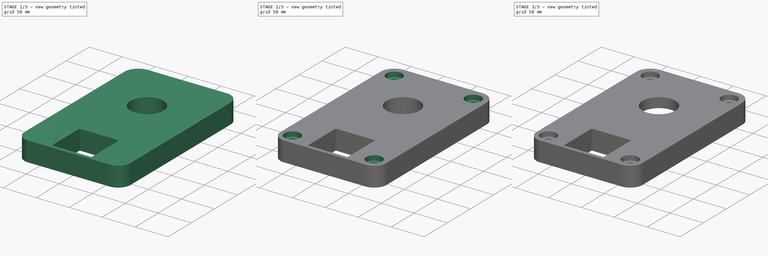
[diagram: build sequence overview — one tinted view per stage of 3, left to right]
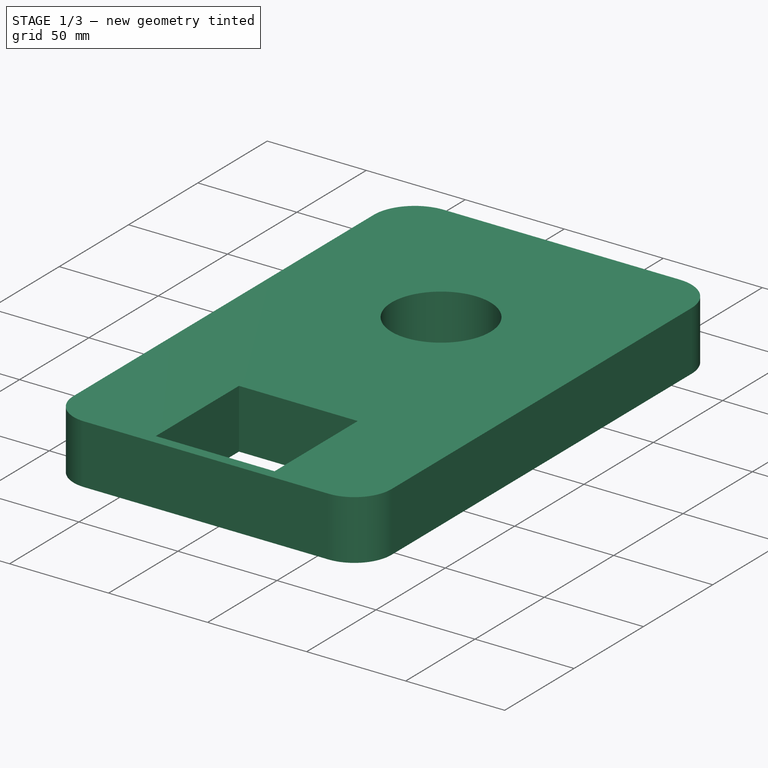
[diagram: stage 1 of 3 — iso view after this stage's code; geometry added in this stage tinted green]
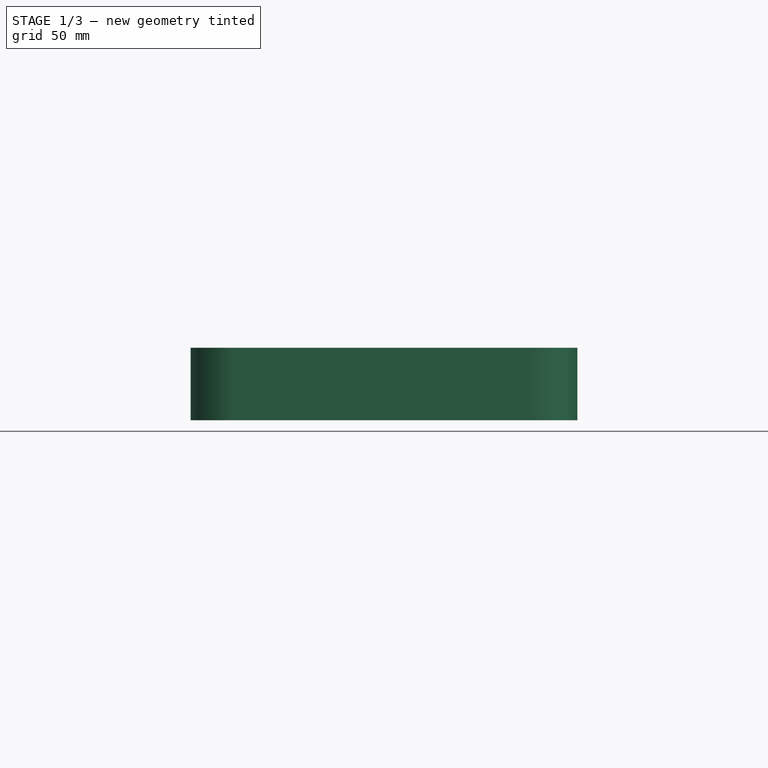
[diagram: stage 1 of 3 — front view after this stage's code; geometry added in this stage tinted green]
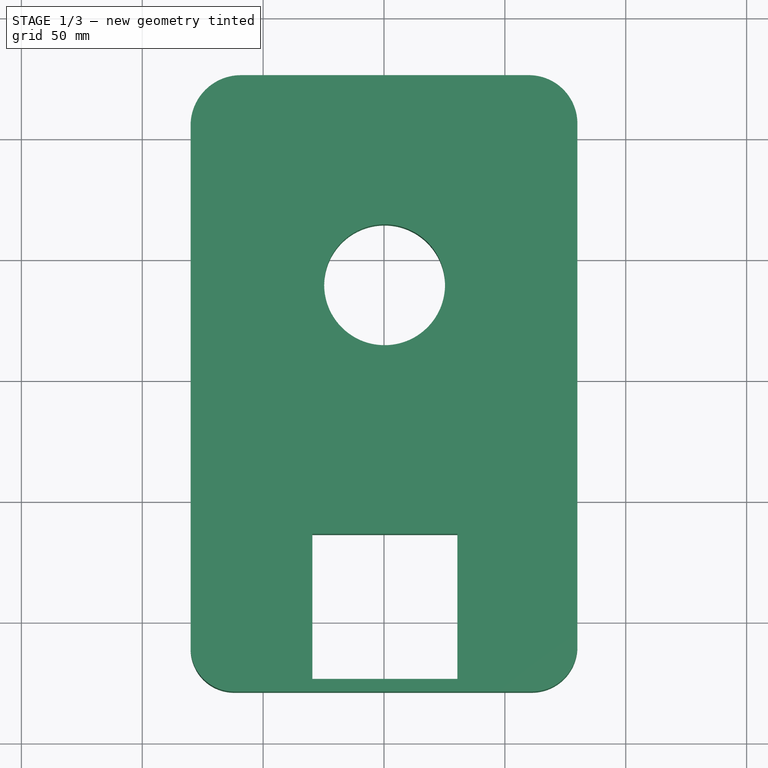
[diagram: stage 1 of 3 — top view after this stage's code; geometry added in this stage tinted green]
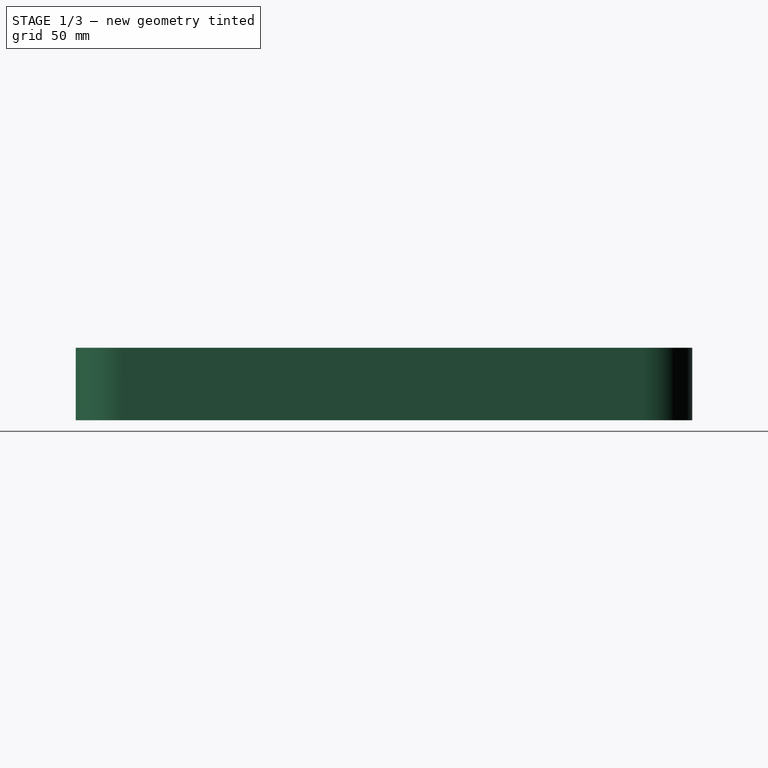
[diagram: stage 1 of 3 — right view after this stage's code; geometry added in this stage tinted green]
FCSTD DOCUMENT  (FreeCAD 0.18R16131 (Git))
Label: Momentum_Main_Plate_138X170_Base
License: All rights reserved
LicenseURL: http://en.wikipedia.org/wiki/All_rights_reserved
objects: Sketcher::SketchObject×2, PartDesign::Pad×2, PartDesign::Hole×2, PartDesign::Pocket×2, PartDesign::Body×1
note: 15 computed .brp shape members not serialized (recipe doc carries the construction recipe); baked Part::Feature solids carry a one-line shape summary decoded from their .brp

FEATURE [Sketcher::SketchObject] Sketch
  MapMode = 5
  Support = -> [XY_Plane]
  sketch-geometry (13):
    g0: Circle CenterX=0.246663 CenterY=39.4031 CenterZ=0 NormalX=0 NormalY=0 NormalZ=1 AngleXU=0 Radius=25
    g1: LineSegment StartX=-62.0087 StartY=-128.889 StartZ=0 EndX=61.1564 EndY=-128.889 EndZ=0
    g2: LineSegment StartX=80 StartY=-110.045 StartZ=0 EndX=80 EndY=106.046 EndZ=0
    g3: LineSegment StartX=59.9347 StartY=126.111 StartZ=0 EndX=-59.1847 EndY=126.111 EndZ=0
    g4: LineSegment StartX=-80 StartY=105.296 StartZ=0 EndX=-80 EndY=-110.898 EndZ=0
    g5: ArcOfCircle CenterX=-59.1847 CenterY=105.296 CenterZ=0 NormalX=0 NormalY=0 NormalZ=1 AngleXU=0 Radius=20.8153 StartAngle=1.5708 EndAngle=3.14159
    g6: ArcOfCircle CenterX=59.9347 CenterY=106.046 CenterZ=0 NormalX=0 NormalY=0 NormalZ=1 AngleXU=0 Radius=20.0653 StartAngle=0 EndAngle=1.5708
    g7: ArcOfCircle CenterX=61.1564 CenterY=-110.045 CenterZ=0 NormalX=0 NormalY=0 NormalZ=1 AngleXU=0 Radius=18.8436 StartAngle=4.71239 EndAngle=6.28319
    g8: ArcOfCircle CenterX=-62.0087 CenterY=-110.898 CenterZ=0 NormalX=0 NormalY=0 NormalZ=1 AngleXU=0 Radius=17.9913 StartAngle=3.14159 EndAngle=4.71239
    g9: LineSegment StartX=-29.6497 StartY=-63.6417 StartZ=0 EndX=30.3503 EndY=-63.6417 EndZ=0
    g10: LineSegment StartX=30.3503 StartY=-63.6417 StartZ=0 EndX=30.3503 EndY=-123.642 EndZ=0
    g11: LineSegment StartX=30.3503 StartY=-123.642 StartZ=0 EndX=-29.6497 EndY=-123.642 EndZ=0
    g12: LineSegment StartX=-29.6497 StartY=-123.642 StartZ=0 EndX=-29.6497 EndY=-63.6417 EndZ=0
  constraints (23):
    c: Radius(g0) = 25
    c: Horizontal(g1)
    c: Horizontal(g3)
    c: Vertical(g2)
    c: Vertical(g4)
    c: Tangent(g3,g5) = -1.5708
    c: Tangent(g4,g5) = -1.5708
    c: Tangent(g3,g6) = -1.5708
    c: Tangent(g2,g6) = -1.5708
    c: Tangent(g2,g7) = -1.5708
    c: Tangent(g1,g7) = -1.5708
    c: Tangent(g1,g8) = -1.5708
    c: Tangent(g4,g8) = -1.5708
    c: Coincident(g9,g10)
    c: Coincident(g10,g11)
    c: Coincident(g11,g12)
    c: Coincident(g12,g9)
    c: Horizontal(g9)
    c: Horizontal(g11)
    c: Vertical(g10)
    c: Vertical(g12)
    c: DistanceX(g9,g9) = 60
    c: DistanceY(g10,g10) = 60
FEATURE [PartDesign::Pad] Pad
  Length = 30
  Length2 = 100
  Profile = -> Sketch
  Type = 0
FEATURE [PartDesign::Pad] Pad001
  BaseFeature = -> Pad
  Length = 30
  Length2 = 100
  Profile = -> Sketch
  Type = 0
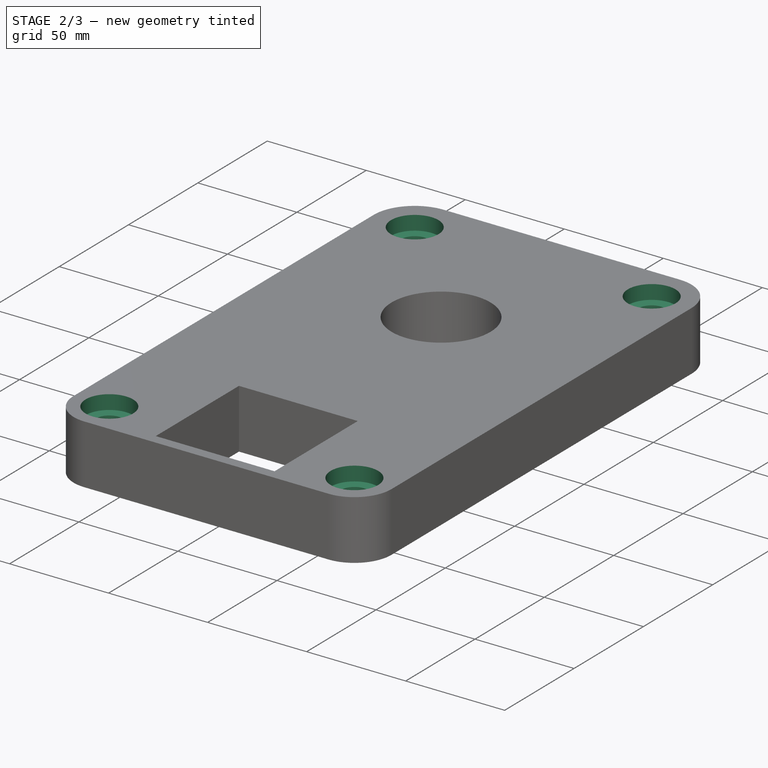
[diagram: stage 2 of 3 — iso view after this stage's code; geometry added in this stage tinted green]
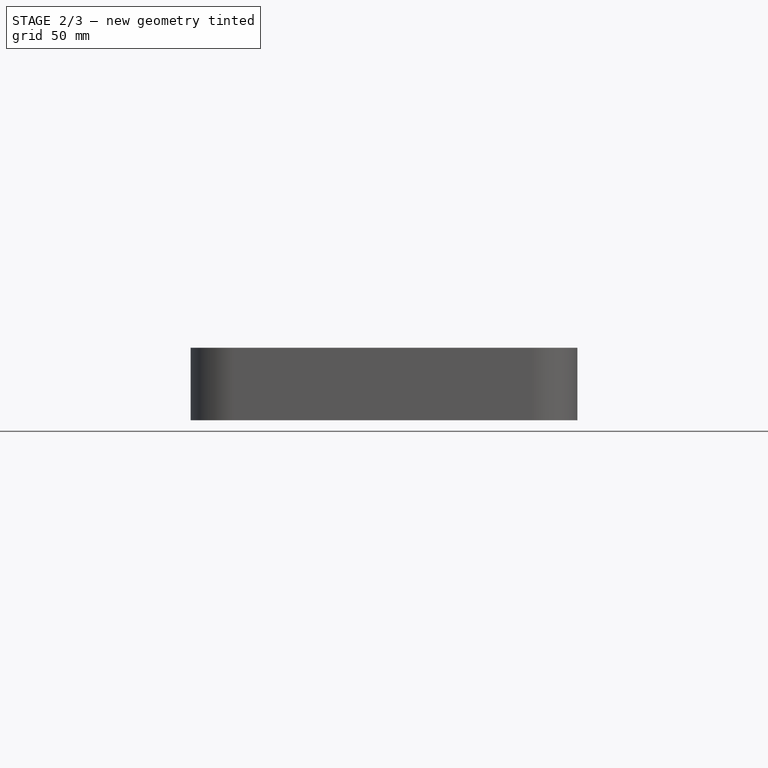
[diagram: stage 2 of 3 — front view after this stage's code; geometry added in this stage tinted green]
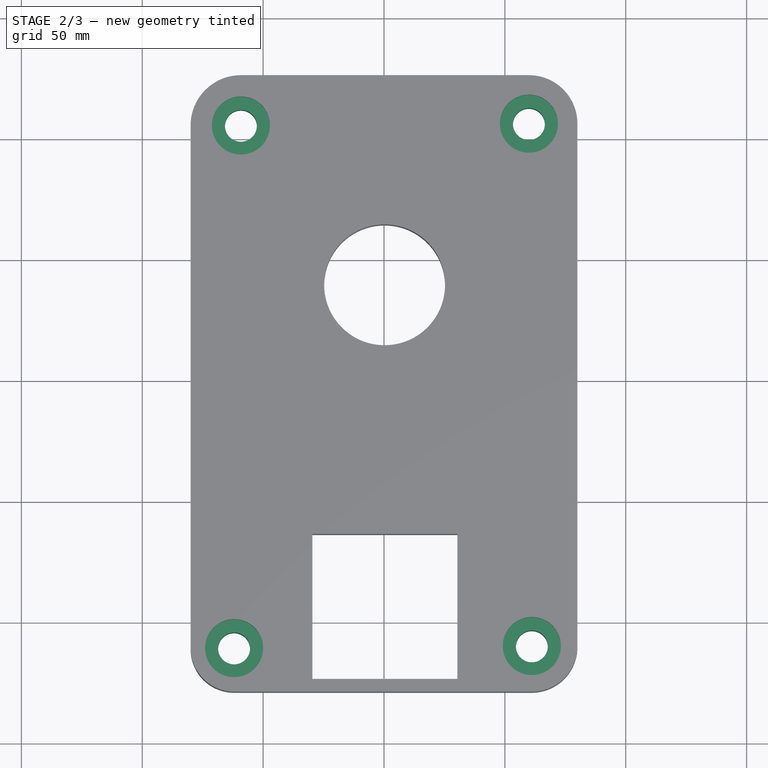
[diagram: stage 2 of 3 — top view after this stage's code; geometry added in this stage tinted green]
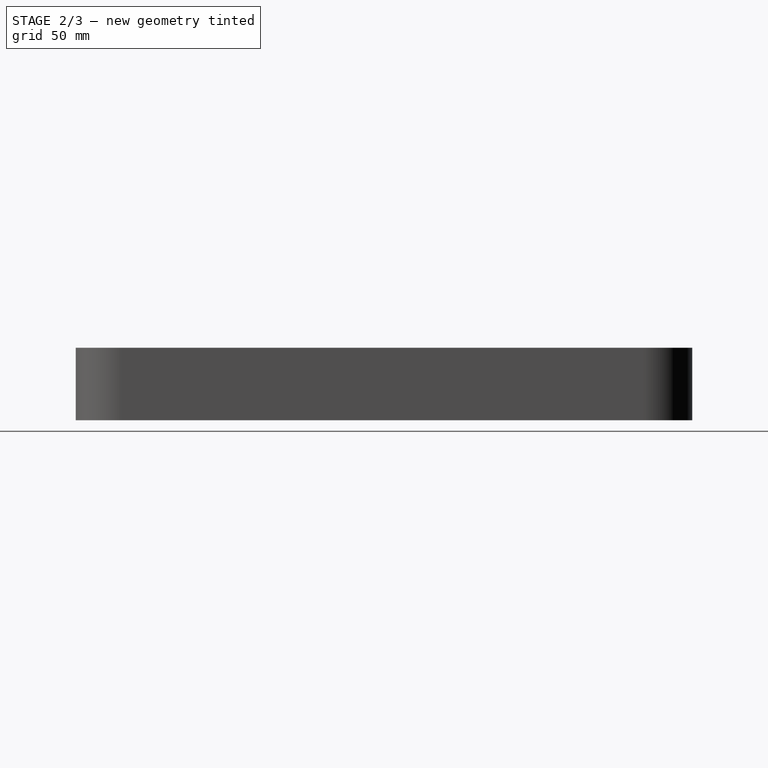
[diagram: stage 2 of 3 — right view after this stage's code; geometry added in this stage tinted green]
FEATURE [PartDesign::Hole] Hole
  BaseFeature = -> Pad001
  Depth = 97
  DepthType = 0
  Diameter = 13.2
  DrillPoint = 1
  DrillPointAngle = 118
  HoleCutCountersinkAngle = 90
  HoleCutDepth = 7.2
  HoleCutDiameter = 24
  HoleCutType = 1
  ModelActualThread = false
  Profile = -> Pad001 [Face5]
  Tapered = false
  TaperedAngle = 90
  ThreadAngle = 0
  ThreadClass = 1
  ThreadCutOffInner = 0
  ThreadCutOffOuter = 0
  ThreadDirection = 0
  ThreadFit = 0
  ThreadPitch = 0
  ThreadSize = 10
  ThreadType = 1
  Threaded = false
FEATURE [Sketcher::SketchObject] Sketch001
  MapMode = 5
  Support = -> [XY_Plane]
  sketch-geometry (1):
    g0: Circle CenterX=0.577402 CenterY=38.905 CenterZ=0 NormalX=0 NormalY=0 NormalZ=1 AngleXU=0 Radius=70
  constraints (1):
    c: Radius(g0) = 70
FEATURE [PartDesign::Pocket] Pocket
  BaseFeature = -> Hole
  Length = 10
  Length2 = 100
  Profile = -> Sketch001
  Type = 0
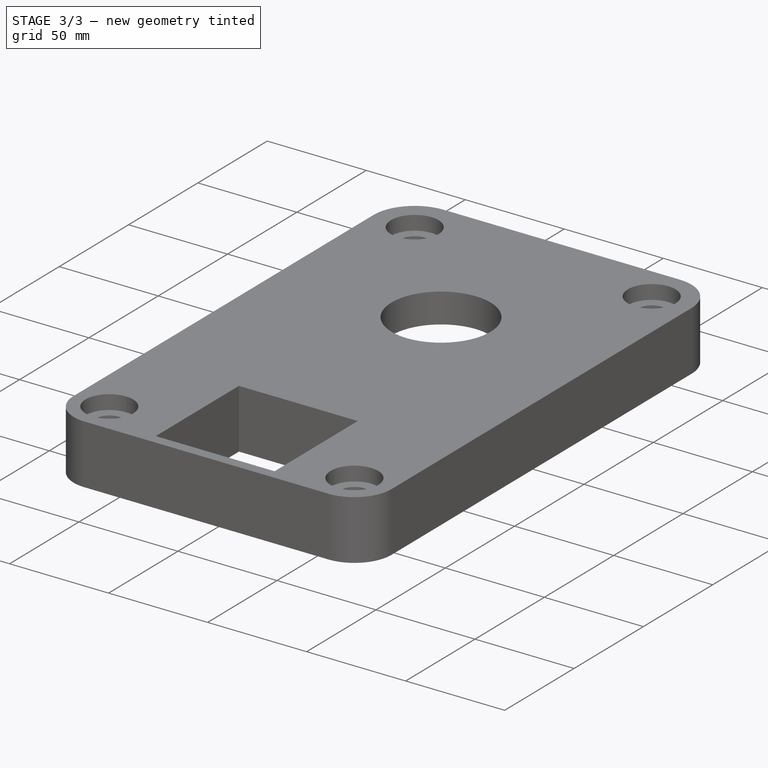
[diagram: stage 3 of 3 — iso view after this stage's code; geometry added in this stage tinted green]
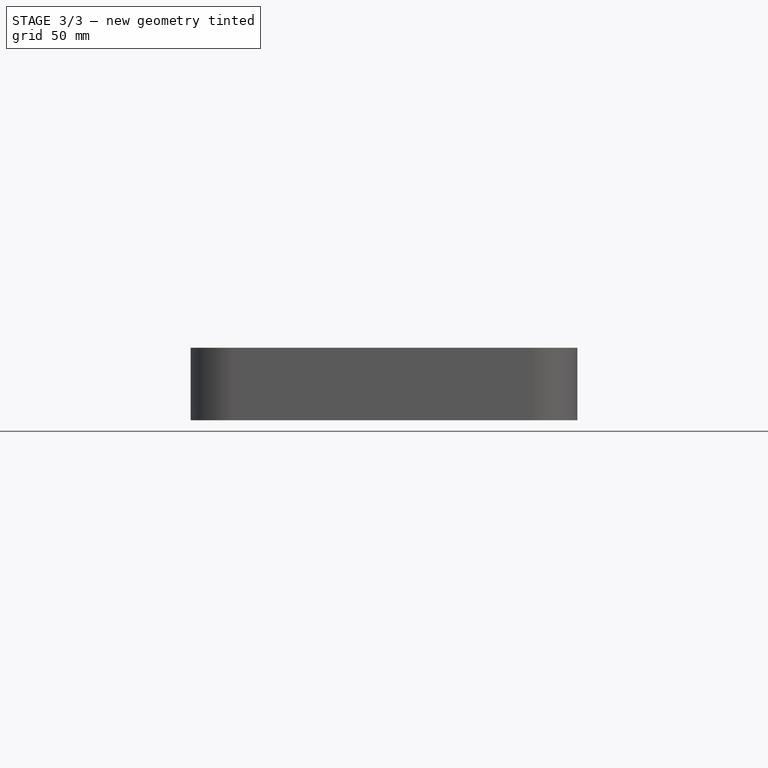
[diagram: stage 3 of 3 — front view after this stage's code; geometry added in this stage tinted green]
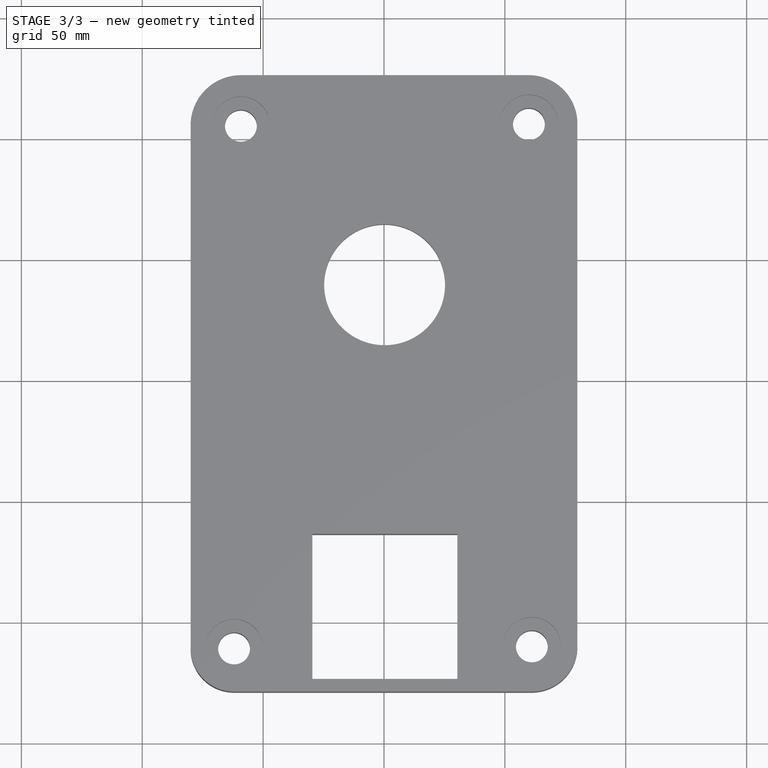
[diagram: stage 3 of 3 — top view after this stage's code; geometry added in this stage tinted green]
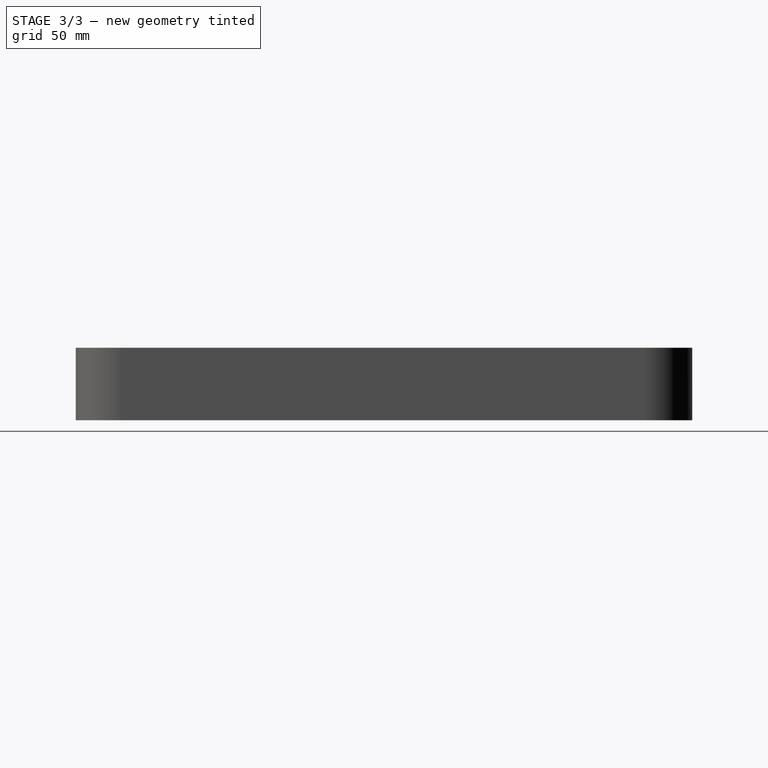
[diagram: stage 3 of 3 — right view after this stage's code; geometry added in this stage tinted green]
FEATURE [PartDesign::Hole] Hole001
  BaseFeature = -> Pocket
  Depth = 25
  DepthType = 1
  Diameter = 1.75
  DrillPoint = 1
  DrillPointAngle = 118
  HoleCutCountersinkAngle = 90
  HoleCutDepth = 0.96
  HoleCutDiameter = 3.2
  HoleCutType = 1
  ModelActualThread = false
  Profile = -> Pocket [Face5]
  Tapered = false
  TaperedAngle = 90
  ThreadAngle = 0
  ThreadClass = 0
  ThreadCutOffInner = 0
  ThreadCutOffOuter = 0
  ThreadDirection = 0
  ThreadFit = 0
  ThreadPitch = 0
  ThreadSize = 0
  ThreadType = 1
  Threaded = false
FEATURE [PartDesign::Pocket] Pocket001
  BaseFeature = -> Hole001
  Length = 15
  Length2 = 100
  Profile = -> Hole001 [Face5]
  Type = 0
FEATURE [PartDesign::Body] Body
  Group = -> [Sketch,Pad,Pad001,Hole,Sketch001,Pocket,Hole001,Pocket001]
  Origin = -> Origin
  Tip = -> Pocket001
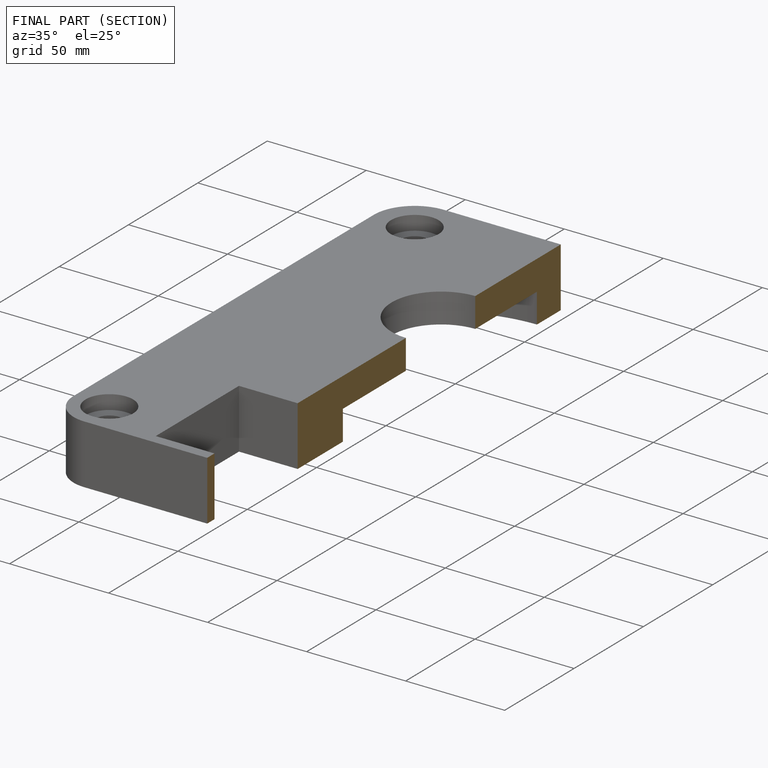
[diagram: finished part — half-section view (interior)]
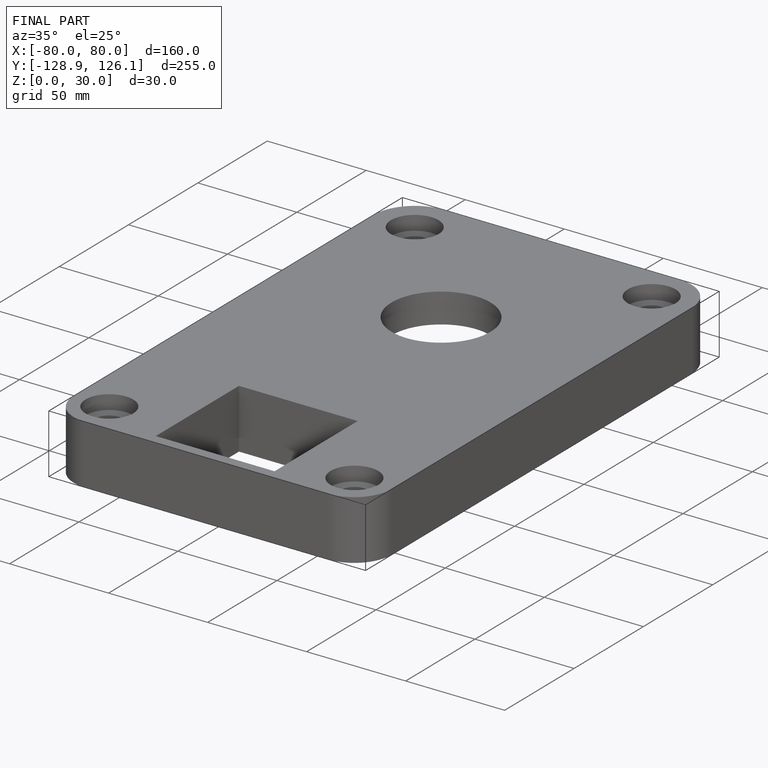
[diagram: finished part — iso view with bounding-box wireframe]
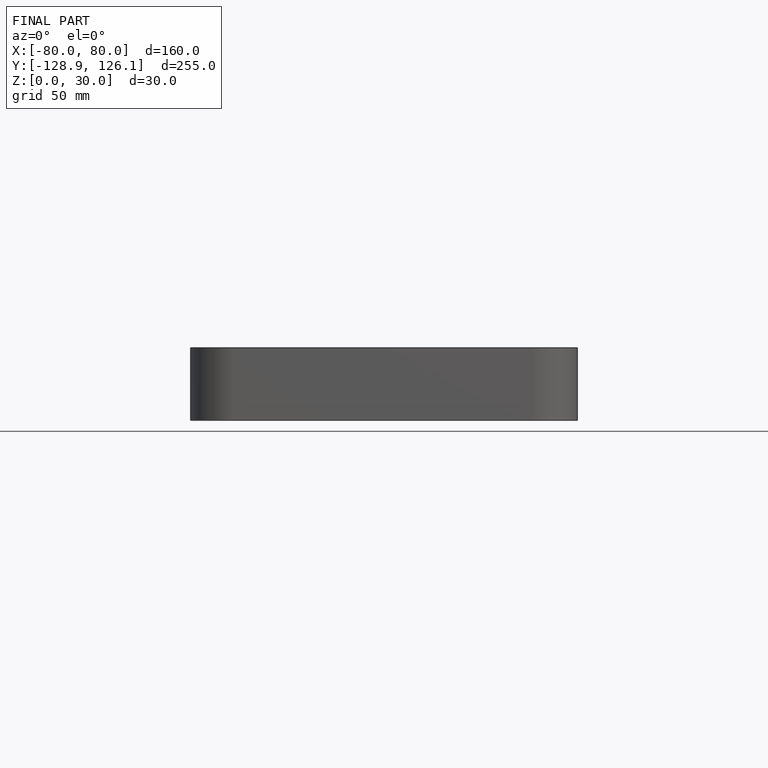
[diagram: finished part — front view with bounding-box wireframe]
